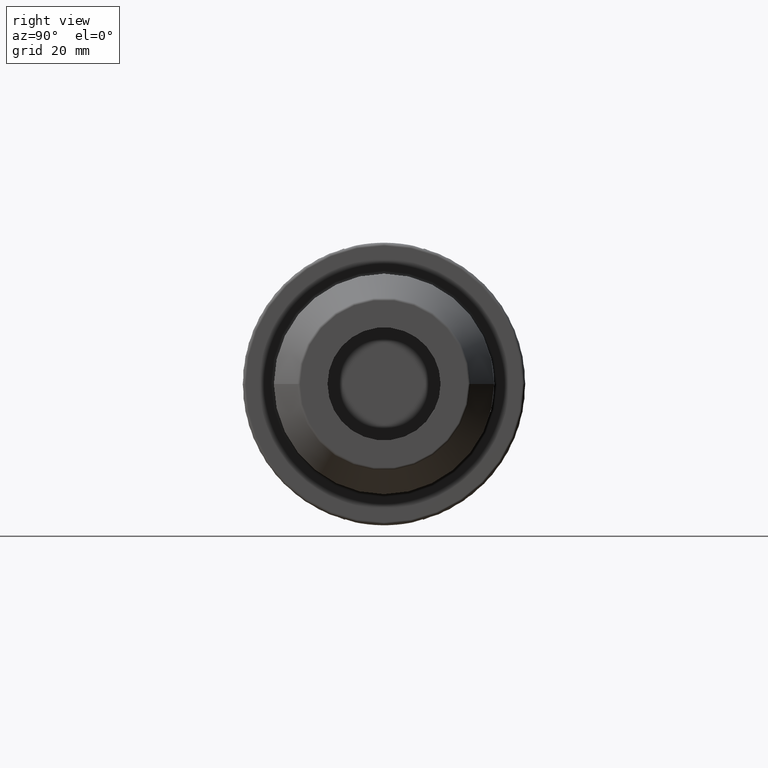
[diagram: clean part render]
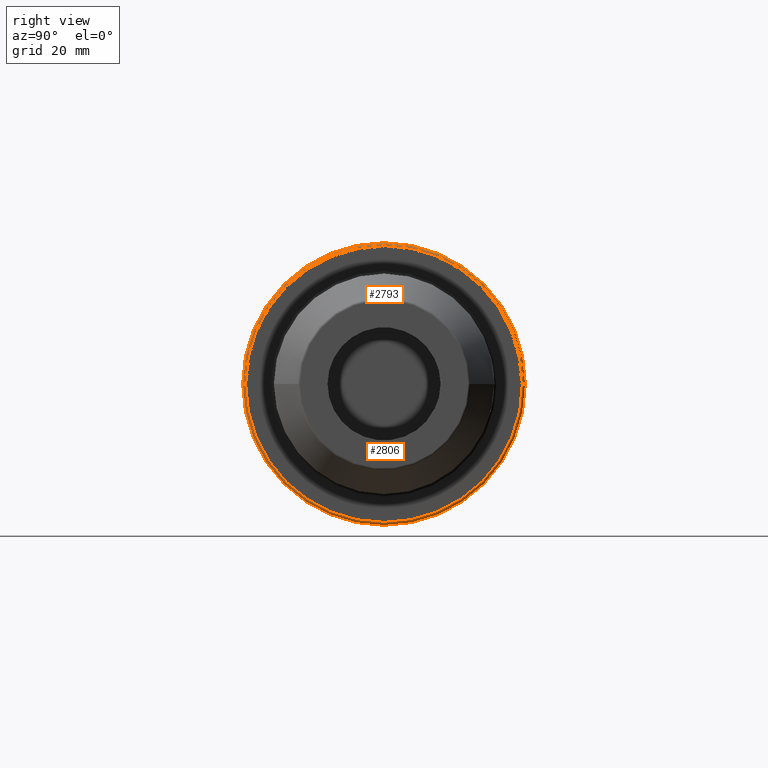
[diagram: same view with one multi-face feature highlighted, each face labeled with its STEP entity id]
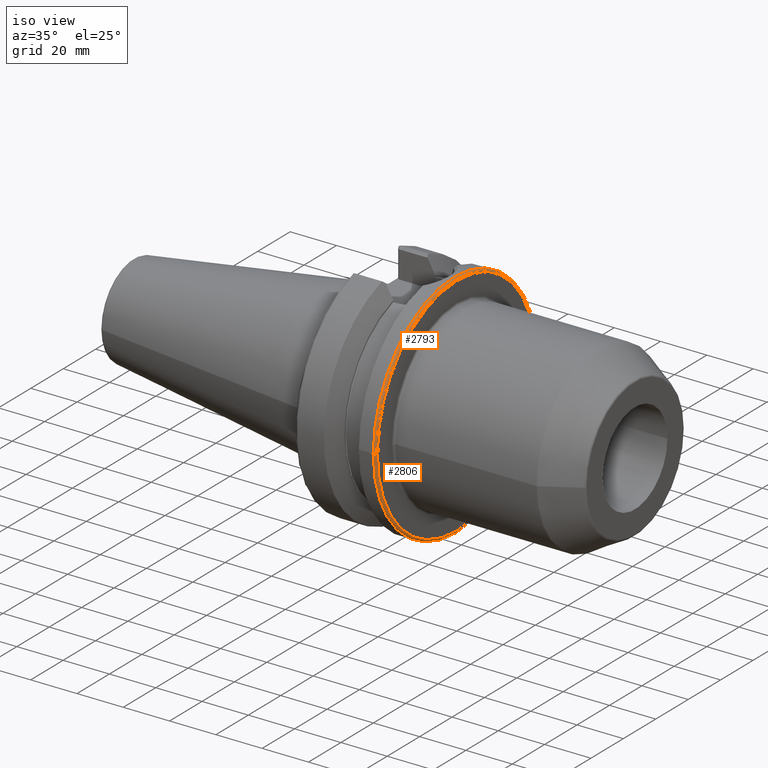
[diagram: same view with one multi-face feature highlighted, each face labeled with its STEP entity id]
A machine part, right view. The highlighted faces form ONE feature: a constant-radius fillet chain: 2 tangent blend faces with common blend radius 1 mm. The faces share edges in the B-rep.
A second angle (iso view) of the same feature is appended — it is thin or edge-on in the first view.
Their STEP definitions:
[1] entity #2793 (Torus):
#787=CARTESIAN_POINT('',(3.7E1,0.E0,0.E0));
#788=DIRECTION('',(1.E0,0.E0,0.E0));
#789=DIRECTION('',(0.E0,1.E0,0.E0));
#790=AXIS2_PLACEMENT_3D('',#787,#788,#789);
#814=CARTESIAN_POINT('',(3.8E1,0.E0,0.E0));
#815=DIRECTION('',(1.E0,0.E0,0.E0));
#816=DIRECTION('',(0.E0,1.E0,0.E0));
#817=AXIS2_PLACEMENT_3D('',#814,#815,#816);
#819=CARTESIAN_POINT('',(3.7E1,4.89875E1,0.E0));
#820=DIRECTION('',(0.E0,0.E0,1.E0));
#821=DIRECTION('',(1.E0,0.E0,0.E0));
#822=AXIS2_PLACEMENT_3D('',#819,#820,#821);
#824=CARTESIAN_POINT('',(3.7E1,-4.89875E1,-1.199847701465E-14));
#825=DIRECTION('',(0.E0,0.E0,-1.E0));
#826=DIRECTION('',(1.E0,0.E0,0.E0));
#827=AXIS2_PLACEMENT_3D('',#824,#825,#826);
#1488=CARTESIAN_POINT('',(3.7E1,4.99875E1,0.E0));
#1489=VERTEX_POINT('',#1488);
#1490=CARTESIAN_POINT('',(3.7E1,-4.99875E1,0.E0));
#1491=VERTEX_POINT('',#1490);
#1558=CARTESIAN_POINT('',(3.8E1,4.89875E1,0.E0));
#1559=VERTEX_POINT('',#1558);
#1560=CARTESIAN_POINT('',(3.8E1,-4.89875E1,-1.199847701465E-14));
#1561=VERTEX_POINT('',#1560);
#2779=CARTESIAN_POINT('',(3.7E1,0.E0,0.E0));
#2780=DIRECTION('',(1.E0,0.E0,0.E0));
#2781=DIRECTION('',(0.E0,-1.E0,0.E0));
#2782=AXIS2_PLACEMENT_3D('',#2779,#2780,#2781);
#2783=TOROIDAL_SURFACE('',#2782,4.89875E1,1.E0);
#2785=ORIENTED_EDGE('',*,*,#2784,.F.);
#2787=ORIENTED_EDGE('',*,*,#2786,.T.);
#2789=ORIENTED_EDGE('',*,*,#2788,.T.);
#2790=ORIENTED_EDGE('',*,*,#2770,.F.);
#2791=EDGE_LOOP('',(#2785,#2787,#2789,#2790));
#2792=FACE_OUTER_BOUND('',#2791,.F.);
#2793=ADVANCED_FACE('',(#2792),#2783,.T.);
#791=CIRCLE('',#790,4.99875E1);
#818=CIRCLE('',#817,4.89875E1);
#823=CIRCLE('',#822,1.E0);
#828=CIRCLE('',#827,1.E0);
#2770=EDGE_CURVE('',#1489,#1491,#791,.T.);
#2784=EDGE_CURVE('',#1559,#1489,#823,.T.);
#2786=EDGE_CURVE('',#1559,#1561,#818,.T.);
#2788=EDGE_CURVE('',#1561,#1491,#828,.T.);
[2] entity #2806 (Torus):
#254=CARTESIAN_POINT('',(3.7E1,0.E0,0.E0));
#255=DIRECTION('',(-1.E0,0.E0,0.E0));
#256=DIRECTION('',(0.E0,1.E0,0.E0));
#257=AXIS2_PLACEMENT_3D('',#254,#255,#256);
#819=CARTESIAN_POINT('',(3.7E1,4.89875E1,0.E0));
#820=DIRECTION('',(0.E0,0.E0,1.E0));
#821=DIRECTION('',(1.E0,0.E0,0.E0));
#822=AXIS2_PLACEMENT_3D('',#819,#820,#821);
#824=CARTESIAN_POINT('',(3.7E1,-4.89875E1,-1.199847701465E-14));
#825=DIRECTION('',(0.E0,0.E0,-1.E0));
#826=DIRECTION('',(1.E0,0.E0,0.E0));
#827=AXIS2_PLACEMENT_3D('',#824,#825,#826);
#829=CARTESIAN_POINT('',(3.8E1,0.E0,0.E0));
#830=DIRECTION('',(-1.E0,0.E0,0.E0));
#831=DIRECTION('',(0.E0,1.E0,0.E0));
#832=AXIS2_PLACEMENT_3D('',#829,#830,#831);
#1488=CARTESIAN_POINT('',(3.7E1,4.99875E1,0.E0));
#1489=VERTEX_POINT('',#1488);
#1490=CARTESIAN_POINT('',(3.7E1,-4.99875E1,0.E0));
#1491=VERTEX_POINT('',#1490);
#1558=CARTESIAN_POINT('',(3.8E1,4.89875E1,0.E0));
#1559=VERTEX_POINT('',#1558);
#1560=CARTESIAN_POINT('',(3.8E1,-4.89875E1,-1.199847701465E-14));
#1561=VERTEX_POINT('',#1560);
#2794=CARTESIAN_POINT('',(3.7E1,0.E0,0.E0));
#2795=DIRECTION('',(1.E0,0.E0,0.E0));
#2796=DIRECTION('',(0.E0,-1.E0,0.E0));
#2797=AXIS2_PLACEMENT_3D('',#2794,#2795,#2796);
#2798=TOROIDAL_SURFACE('',#2797,4.89875E1,1.E0);
#2799=ORIENTED_EDGE('',*,*,#2784,.T.);
#2800=ORIENTED_EDGE('',*,*,#2033,.T.);
#2801=ORIENTED_EDGE('',*,*,#2788,.F.);
#2803=ORIENTED_EDGE('',*,*,#2802,.F.);
#2804=EDGE_LOOP('',(#2799,#2800,#2801,#2803));
#2805=FACE_OUTER_BOUND('',#2804,.F.);
#2806=ADVANCED_FACE('',(#2805),#2798,.T.);
#258=CIRCLE('',#257,4.99875E1);
#823=CIRCLE('',#822,1.E0);
#828=CIRCLE('',#827,1.E0);
#833=CIRCLE('',#832,4.89875E1);
#2033=EDGE_CURVE('',#1489,#1491,#258,.T.);
#2784=EDGE_CURVE('',#1559,#1489,#823,.T.);
#2788=EDGE_CURVE('',#1561,#1491,#828,.T.);
#2802=EDGE_CURVE('',#1559,#1561,#833,.T.);